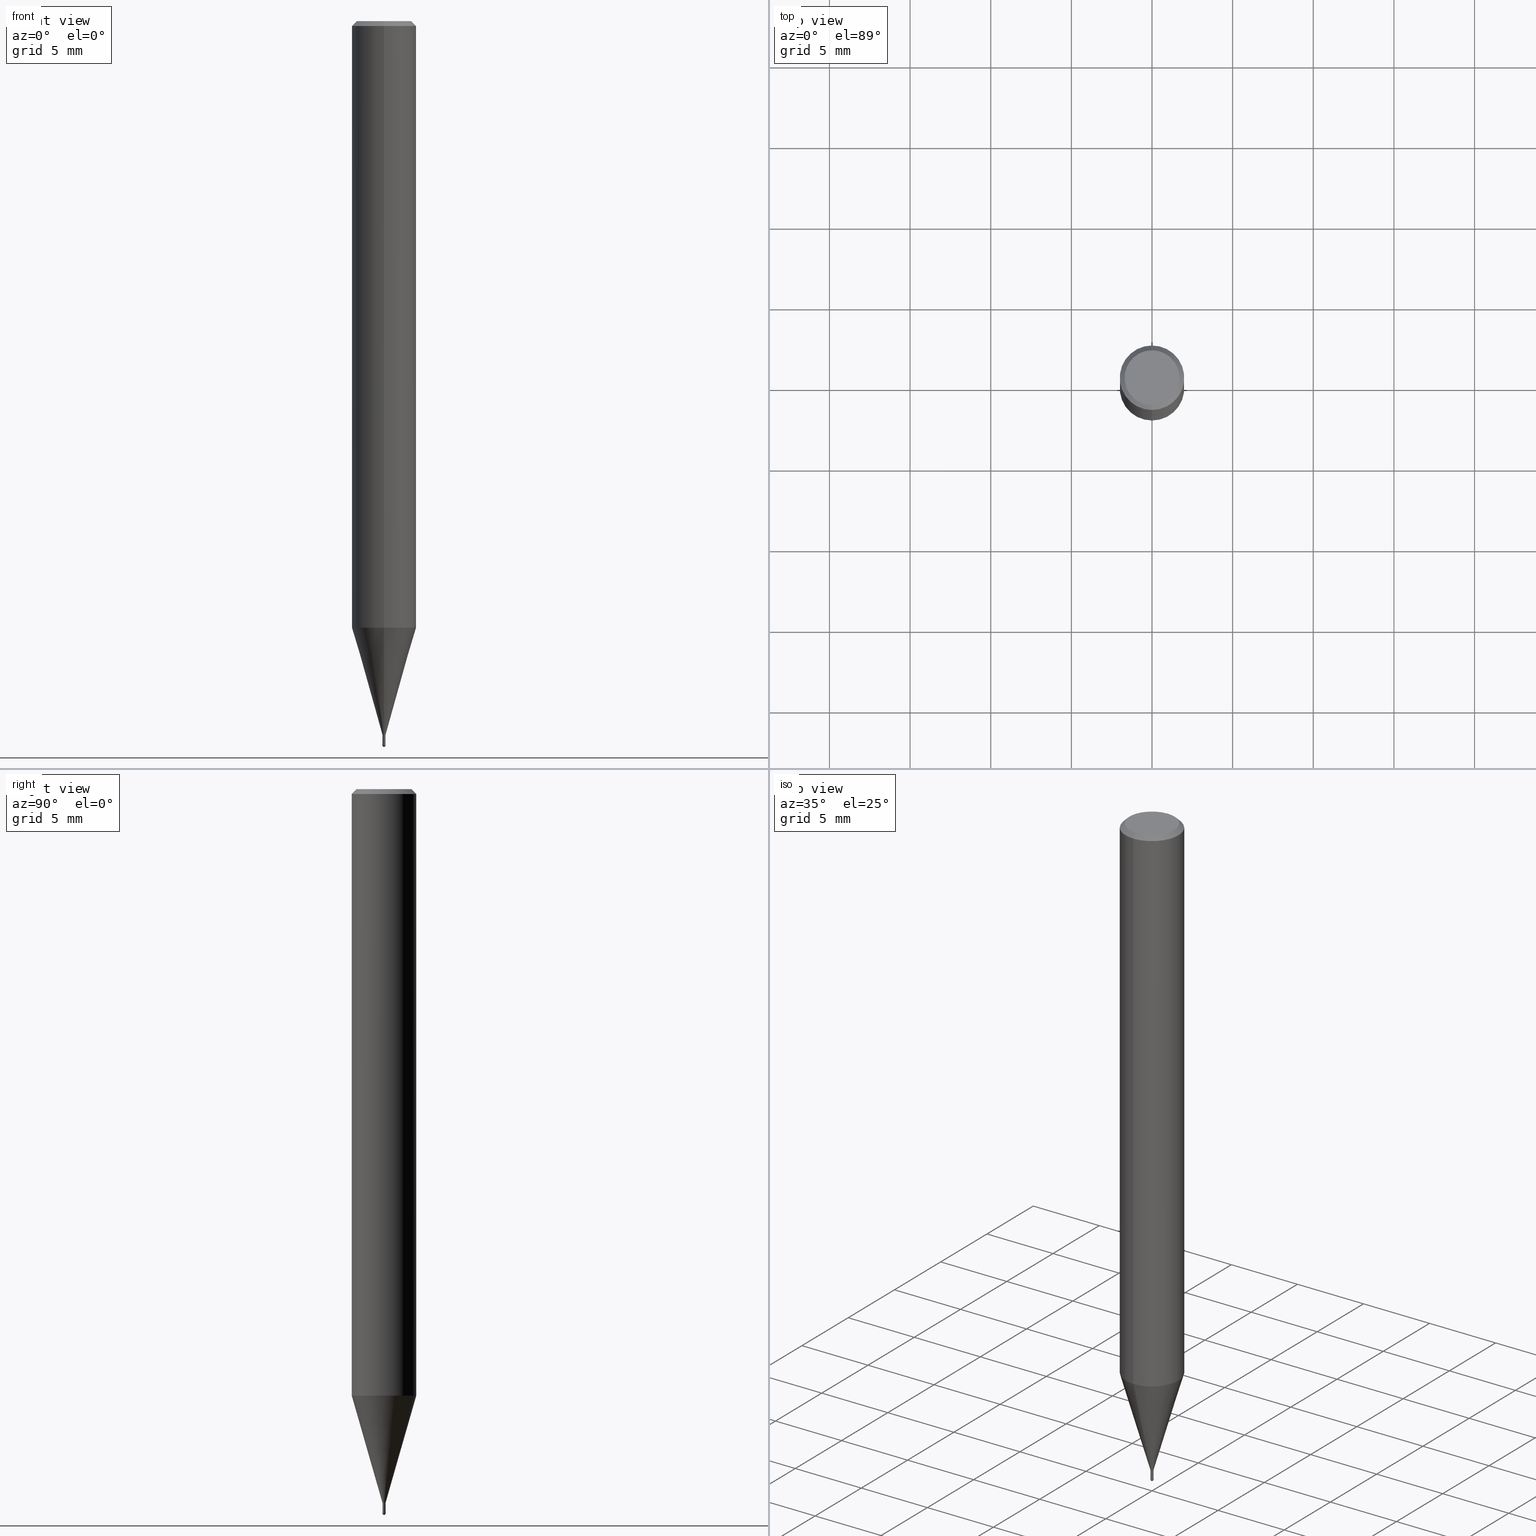
[diagram: canonical four-view strip — front | top / right | iso, engineering-drawing reading convention]
A machine part, canonical four-view strip (front | top / right | iso — engineering-drawing reading convention). The complete STEP part file that produces these views, byte-faithful:
ISO-10303-21;
HEADER;
FILE_DESCRIPTION(('no description'),'unknown implementation level');
FILE_NAME('HSLB2002-0075-Huellk.stp','  ',('CIMSOURCE GmbH'),('CADClick - KiM GmbH - www.kimweb.de'),'unknown preprocess','ACIS','unknown authorization');
FILE_SCHEMA(('automotive_design'));
ENDSEC;
DATA;
#1=MECHANICAL_DESIGN_GEOMETRIC_PRESENTATION_REPRESENTATION(' ',(#14,#15,#16,#17,#18,#19,#20,#21,#22,#23,#24,#25,#26,#27,#28,#29,#30,#31,#32,#33,#34,#35,#36,#37,#38,#39,#40,#41,#42,#43,#44,#45,#46,#47,#48,#49,#50,#51,#52,#53,#54,#55,#56,#57,#58,#59,#60,#61,#62,#63,#64,#65,#66,#67,#68,#69,#70,#71,#72,#73,#74),#10);
#2=PRODUCT_DEFINITION_CONTEXT('',#75,'design');
#3=APPLICATION_PROTOCOL_DEFINITION('INTERNATIONAL STANDARD','automotive_design',1994,#75);
#4=PRODUCT_CATEGORY_RELATIONSHIP('NONE','NONE',#76,#77);
#5=SHAPE_DEFINITION_REPRESENTATION(#78,#79);
#6=PRODUCT_DEFINITION_CONTEXT('',#80,'design');
#7=APPLICATION_PROTOCOL_DEFINITION('INTERNATIONAL STANDARD','automotive_design',1994,#80);
#8=PRODUCT_CATEGORY_RELATIONSHIP('NONE','NONE',#81,#82);
#9=SHAPE_DEFINITION_REPRESENTATION(#83,#84);
#10= (GEOMETRIC_REPRESENTATION_CONTEXT(3)GLOBAL_UNCERTAINTY_ASSIGNED_CONTEXT((#87))GLOBAL_UNIT_ASSIGNED_CONTEXT((#89,#90,#91))REPRESENTATION_CONTEXT('NONE','WORKSPACE'));
#14=STYLED_ITEM('',(#93),#94);
#15=STYLED_ITEM('',(#95),#96);
#16=STYLED_ITEM('',(#97),#98);
#17=STYLED_ITEM('',(#99),#100);
#18=STYLED_ITEM('',(#101),#102);
#19=STYLED_ITEM('',(#103),#104);
#20=STYLED_ITEM('',(#105),#106);
#21=STYLED_ITEM('',(#107),#108);
#22=STYLED_ITEM('',(#109),#110);
#23=STYLED_ITEM('',(#111),#112);
#24=STYLED_ITEM('',(#113),#114);
#25=STYLED_ITEM('',(#115),#116);
#26=STYLED_ITEM('',(#117),#118);
#27=STYLED_ITEM('',(#119),#120);
#28=STYLED_ITEM('',(#121),#122);
#29=STYLED_ITEM('',(#123),#124);
#30=STYLED_ITEM('',(#125),#126);
#31=STYLED_ITEM('',(#127),#128);
#32=STYLED_ITEM('',(#129),#130);
#33=STYLED_ITEM('',(#131),#132);
#34=STYLED_ITEM('',(#133),#134);
#35=STYLED_ITEM('',(#135),#136);
#36=STYLED_ITEM('',(#137),#138);
#37=STYLED_ITEM('',(#139),#140);
#38=STYLED_ITEM('',(#141),#142);
#39=STYLED_ITEM('',(#143),#144);
#40=STYLED_ITEM('',(#145),#146);
#41=STYLED_ITEM('',(#147),#148);
#42=STYLED_ITEM('',(#149),#150);
#43=STYLED_ITEM('',(#151),#152);
#44=STYLED_ITEM('',(#153),#154);
#45=STYLED_ITEM('',(#155),#156);
#46=STYLED_ITEM('',(#157),#158);
#47=STYLED_ITEM('',(#159),#160);
#48=STYLED_ITEM('',(#161),#162);
#49=STYLED_ITEM('',(#163),#164);
#50=STYLED_ITEM('',(#165),#166);
#51=STYLED_ITEM('',(#167),#168);
#52=STYLED_ITEM('',(#169),#170);
#53=STYLED_ITEM('',(#171),#172);
#54=STYLED_ITEM('',(#173),#174);
#55=STYLED_ITEM('',(#175),#176);
#56=STYLED_ITEM('',(#177),#178);
#57=STYLED_ITEM('',(#179),#180);
#58=STYLED_ITEM('',(#181),#182);
#59=STYLED_ITEM('',(#183),#184);
#60=STYLED_ITEM('',(#185),#186);
#61=STYLED_ITEM('',(#187),#188);
#62=STYLED_ITEM('',(#189),#190);
#63=STYLED_ITEM('',(#191),#192);
#64=STYLED_ITEM('',(#193),#194);
#65=STYLED_ITEM('',(#195),#196);
#66=STYLED_ITEM('',(#197),#198);
#67=STYLED_ITEM('',(#199),#200);
#68=STYLED_ITEM('',(#201),#202);
#69=STYLED_ITEM('',(#203),#204);
#70=STYLED_ITEM('',(#205),#206);
#71=STYLED_ITEM('',(#207),#208);
#72=STYLED_ITEM('',(#209),#210);
#73=STYLED_ITEM('',(#211),#212);
#74=STYLED_ITEM('',(#213),#214);
#75=APPLICATION_CONTEXT(' ');
#76=PRODUCT_CATEGORY('part','NONE');
#77=PRODUCT_RELATED_PRODUCT_CATEGORY('detail',' ',(#215));
#78=PRODUCT_DEFINITION_SHAPE('NONE','NONE',#216);
#79=ADVANCED_BREP_SHAPE_REPRESENTATION('1',(#138,#217),#10);
#80=APPLICATION_CONTEXT(' ');
#81=PRODUCT_CATEGORY('part','NONE');
#82=PRODUCT_RELATED_PRODUCT_CATEGORY('detail',' ',(#218));
#83=PRODUCT_DEFINITION_SHAPE('NONE','NONE',#219);
#84=ADVANCED_BREP_SHAPE_REPRESENTATION('2',(#178,#220),#10);
#87=UNCERTAINTY_MEASURE_WITH_UNIT(LENGTH_MEASURE(1.0E-006),#89,'','');
#89= (CONVERSION_BASED_UNIT('MILLIMETRE',#223)LENGTH_UNIT()NAMED_UNIT(#226));
#90= (NAMED_UNIT(#228)PLANE_ANGLE_UNIT()SI_UNIT($,.RADIAN.));
#91= (NAMED_UNIT(#228)SOLID_ANGLE_UNIT()SI_UNIT($,.STERADIAN.));
#93=PRESENTATION_STYLE_ASSIGNMENT((#234));
#94=EDGE_CURVE('',#210,#136,#235,.T.);
#95=PRESENTATION_STYLE_ASSIGNMENT((#236));
#96=EDGE_CURVE('',#208,#200,#237,.T.);
#97=PRESENTATION_STYLE_ASSIGNMENT((#238));
#98=VERTEX_POINT('',#239);
#99=PRESENTATION_STYLE_ASSIGNMENT((#240));
#100=ADVANCED_FACE('',(#241),#242,.T.);
#101=PRESENTATION_STYLE_ASSIGNMENT((#243));
#102=EDGE_CURVE('',#212,#130,#244,.T.);
#103=PRESENTATION_STYLE_ASSIGNMENT((#245));
#104=ADVANCED_FACE('',(#246),#247,.T.);
#105=PRESENTATION_STYLE_ASSIGNMENT((#248));
#106=ADVANCED_FACE('',(#249),#250,.T.);
#107=PRESENTATION_STYLE_ASSIGNMENT((#251));
#108=EDGE_CURVE('',#136,#210,#252,.T.);
#109=PRESENTATION_STYLE_ASSIGNMENT((#253));
#110=EDGE_CURVE('',#206,#174,#254,.T.);
#111=PRESENTATION_STYLE_ASSIGNMENT((#255));
#112=ADVANCED_FACE('',(#256),#257,.T.);
#113=PRESENTATION_STYLE_ASSIGNMENT((#258));
#114=ADVANCED_FACE('',(#259),#260,.T.);
#115=PRESENTATION_STYLE_ASSIGNMENT((#261));
#116=VERTEX_POINT('',#262);
#117=PRESENTATION_STYLE_ASSIGNMENT((#263));
#118=EDGE_CURVE('',#154,#130,#264,.T.);
#119=PRESENTATION_STYLE_ASSIGNMENT((#265));
#120=ADVANCED_FACE('',(#266),#267,.T.);
#121=PRESENTATION_STYLE_ASSIGNMENT((#268));
#122=ADVANCED_FACE('',(#269),#270,.T.);
#123=PRESENTATION_STYLE_ASSIGNMENT((#271));
#124=EDGE_CURVE('',#130,#212,#272,.T.);
#125=PRESENTATION_STYLE_ASSIGNMENT((#273));
#126=EDGE_CURVE('',#200,#174,#274,.T.);
#127=PRESENTATION_STYLE_ASSIGNMENT((#275));
#128=EDGE_CURVE('',#202,#210,#276,.T.);
#129=PRESENTATION_STYLE_ASSIGNMENT((#277));
#130=VERTEX_POINT('',#278);
#131=PRESENTATION_STYLE_ASSIGNMENT((#279));
#132=EDGE_CURVE('',#208,#98,#280,.T.);
#133=PRESENTATION_STYLE_ASSIGNMENT((#281));
#134=ADVANCED_FACE('',(#282,#283),#284,.T.);
#135=PRESENTATION_STYLE_ASSIGNMENT((#285));
#136=VERTEX_POINT('',#286);
#137=PRESENTATION_STYLE_ASSIGNMENT((#287));
#138=MANIFOLD_SOLID_BREP('1',#288);
#139=PRESENTATION_STYLE_ASSIGNMENT((#289));
#140=EDGE_CURVE('',#154,#148,#290,.T.);
#141=PRESENTATION_STYLE_ASSIGNMENT((#291));
#142=VERTEX_POINT('',#292);
#143=PRESENTATION_STYLE_ASSIGNMENT((#293));
#144=EDGE_CURVE('',#150,#98,#294,.T.);
#145=PRESENTATION_STYLE_ASSIGNMENT((#295));
#146=VERTEX_POINT('',#296);
#147=PRESENTATION_STYLE_ASSIGNMENT((#297));
#148=VERTEX_POINT('',#298);
#149=PRESENTATION_STYLE_ASSIGNMENT((#299));
#150=VERTEX_POINT('',#300);
#151=PRESENTATION_STYLE_ASSIGNMENT((#301));
#152=EDGE_CURVE('',#174,#206,#302,.T.);
#153=PRESENTATION_STYLE_ASSIGNMENT((#303));
#154=VERTEX_POINT('',#304);
#155=PRESENTATION_STYLE_ASSIGNMENT((#305));
#156=ADVANCED_FACE('',(#306),#307,.T.);
#157=PRESENTATION_STYLE_ASSIGNMENT((#308));
#158=EDGE_CURVE('',#148,#154,#309,.T.);
#159=PRESENTATION_STYLE_ASSIGNMENT((#310));
#160=EDGE_CURVE('',#142,#116,#311,.T.);
#161=PRESENTATION_STYLE_ASSIGNMENT((#312));
#162=EDGE_CURVE('',#150,#200,#313,.T.);
#163=PRESENTATION_STYLE_ASSIGNMENT((#314));
#164=EDGE_CURVE('',#202,#146,#315,.T.);
#165=PRESENTATION_STYLE_ASSIGNMENT((#316));
#166=EDGE_CURVE('',#200,#150,#317,.T.);
#167=PRESENTATION_STYLE_ASSIGNMENT((#318));
#168=ADVANCED_FACE('',(#319),#320,.T.);
#169=PRESENTATION_STYLE_ASSIGNMENT((#321));
#170=ADVANCED_FACE('',(#322),#323,.T.);
#171=PRESENTATION_STYLE_ASSIGNMENT((#324));
#172=EDGE_CURVE('',#212,#148,#325,.T.);
#173=PRESENTATION_STYLE_ASSIGNMENT((#326));
#174=VERTEX_POINT('',#327);
#175=PRESENTATION_STYLE_ASSIGNMENT((#328));
#176=EDGE_CURVE('',#116,#142,#329,.T.);
#177=PRESENTATION_STYLE_ASSIGNMENT((#330));
#178=MANIFOLD_SOLID_BREP('2',#331);
#179=PRESENTATION_STYLE_ASSIGNMENT((#332));
#180=ADVANCED_FACE('',(#333),#334,.T.);
#181=PRESENTATION_STYLE_ASSIGNMENT((#335));
#182=EDGE_CURVE('',#142,#212,#336,.T.);
#183=PRESENTATION_STYLE_ASSIGNMENT((#337));
#184=ADVANCED_FACE('',(#338),#339,.T.);
#185=PRESENTATION_STYLE_ASSIGNMENT((#340));
#186=ADVANCED_FACE('',(#341),#342,.T.);
#187=PRESENTATION_STYLE_ASSIGNMENT((#343));
#188=ADVANCED_FACE('',(#344),#345,.T.);
#189=PRESENTATION_STYLE_ASSIGNMENT((#346));
#190=EDGE_CURVE('',#206,#150,#347,.T.);
#191=PRESENTATION_STYLE_ASSIGNMENT((#348));
#192=ADVANCED_FACE('',(#349),#350,.T.);
#193=PRESENTATION_STYLE_ASSIGNMENT((#351));
#194=EDGE_CURVE('',#146,#202,#352,.T.);
#195=PRESENTATION_STYLE_ASSIGNMENT((#353));
#196=EDGE_CURVE('',#136,#146,#354,.T.);
#197=PRESENTATION_STYLE_ASSIGNMENT((#355));
#198=EDGE_CURVE('',#98,#208,#356,.T.);
#199=PRESENTATION_STYLE_ASSIGNMENT((#357));
#200=VERTEX_POINT('',#358);
#201=PRESENTATION_STYLE_ASSIGNMENT((#359));
#202=VERTEX_POINT('',#360);
#203=PRESENTATION_STYLE_ASSIGNMENT((#361));
#204=EDGE_CURVE('',#130,#116,#362,.T.);
#205=PRESENTATION_STYLE_ASSIGNMENT((#363));
#206=VERTEX_POINT('',#364);
#207=PRESENTATION_STYLE_ASSIGNMENT((#365));
#208=VERTEX_POINT('',#366);
#209=PRESENTATION_STYLE_ASSIGNMENT((#367));
#210=VERTEX_POINT('',#368);
#211=PRESENTATION_STYLE_ASSIGNMENT((#369));
#212=VERTEX_POINT('',#370);
#213=PRESENTATION_STYLE_ASSIGNMENT((#371));
#214=EDGE_CURVE('',#202,#146,#372,.T.);
#215=PRODUCT('1','1','PART-1-DESC',(#373));
#216=PRODUCT_DEFINITION('NONE','NONE',#374,#2);
#217=AXIS2_PLACEMENT_3D('',#375,#376,#377);
#218=PRODUCT('2','2','PART-2-DESC',(#378));
#219=PRODUCT_DEFINITION('NONE','NONE',#379,#6);
#220=AXIS2_PLACEMENT_3D('',#380,#381,#382);
#223=LENGTH_MEASURE_WITH_UNIT(LENGTH_MEASURE(1.0),#383);
#226=DIMENSIONAL_EXPONENTS(1.0,0.0,0.0,0.0,0.0,0.0,0.0);
#228=DIMENSIONAL_EXPONENTS(0.0,0.0,0.0,0.0,0.0,0.0,0.0);
#234=CURVE_STYLE('',#384,POSITIVE_LENGTH_MEASURE(1.0E-006),#385);
#235=CIRCLE('',#386,0.0999);
#236=CURVE_STYLE('',#387,POSITIVE_LENGTH_MEASURE(1.0E-006),#388);
#237=LINE('',#389,#390);
#238=POINT_STYLE(' ',#391,POSITIVE_LENGTH_MEASURE(1.0E-006),#392);
#239=CARTESIAN_POINT('',(0.0,2.0,-37.606));
#240=SURFACE_STYLE_USAGE(.BOTH.,#393);
#241=FACE_OUTER_BOUND('',#394,.T.);
#242=SPHERICAL_SURFACE('',#395,0.1);
#243=CURVE_STYLE('',#396,POSITIVE_LENGTH_MEASURE(1.0E-006),#397);
#244=CIRCLE('',#398,0.09495);
#245=SURFACE_STYLE_USAGE(.BOTH.,#399);
#246=FACE_OUTER_BOUND('',#400,.T.);
#247=CONICAL_SURFACE('',#401,1.04745,0.279233718115795);
#248=SURFACE_STYLE_USAGE(.BOTH.,#402);
#249=FACE_OUTER_BOUND('',#403,.T.);
#250=CYLINDRICAL_SURFACE('',#404,0.09495);
#251=CURVE_STYLE('',#405,POSITIVE_LENGTH_MEASURE(1.0E-006),#406);
#252=CIRCLE('',#407,0.0999);
#253=CURVE_STYLE('',#408,POSITIVE_LENGTH_MEASURE(1.0E-006),#409);
#254=CIRCLE('',#410,1.7);
#255=SURFACE_STYLE_USAGE(.BOTH.,#411);
#256=FACE_OUTER_BOUND('',#412,.T.);
#257=CONICAL_SURFACE('',#413,0.09995,0.00166666512345941);
#258=SURFACE_STYLE_USAGE(.BOTH.,#414);
#259=FACE_OUTER_BOUND('',#415,.T.);
#260=PLANE('',#416);
#261=POINT_STYLE(' ',#417,POSITIVE_LENGTH_MEASURE(1.0E-006),#418);
#262=CARTESIAN_POINT('',(2.44915147732706E-016,-1.99995,-37.606));
#263=CURVE_STYLE('',#419,POSITIVE_LENGTH_MEASURE(1.0E-006),#420);
#264=LINE('',#421,#422);
#265=SURFACE_STYLE_USAGE(.BOTH.,#423);
#266=FACE_OUTER_BOUND('',#424,.T.);
#267=CYLINDRICAL_SURFACE('',#425,0.09495);
#268=SURFACE_STYLE_USAGE(.BOTH.,#426);
#269=FACE_OUTER_BOUND('',#427,.T.);
#270=PLANE('',#428);
#271=CURVE_STYLE('',#429,POSITIVE_LENGTH_MEASURE(1.0E-006),#430);
#272=CIRCLE('',#431,0.09495);
#273=CURVE_STYLE('',#432,POSITIVE_LENGTH_MEASURE(1.0E-006),#433);
#274=LINE('',#434,#435);
#275=CURVE_STYLE('',#436,POSITIVE_LENGTH_MEASURE(1.0E-006),#437);
#276=LINE('',#438,#439);
#277=POINT_STYLE(' ',#440,POSITIVE_LENGTH_MEASURE(1.0E-006),#441);
#278=CARTESIAN_POINT('',(1.16276373295435E-017,-0.09495,-44.25));
#279=CURVE_STYLE('',#442,POSITIVE_LENGTH_MEASURE(1.0E-006),#443);
#280=CIRCLE('',#444,2.0);
#281=SURFACE_STYLE_USAGE(.BOTH.,#445);
#282=FACE_OUTER_BOUND('',#446,.T.);
#283=FACE_BOUND('',#447,.T.);
#284=PLANE('',#448);
#285=POINT_STYLE(' ',#449,POSITIVE_LENGTH_MEASURE(1.0E-006),#450);
#286=CARTESIAN_POINT('',(0.0,0.0999,-44.84));
#287=SURFACE_STYLE_USAGE(.BOTH.,#451);
#288=CLOSED_SHELL('',(#120,#180,#192,#170,#134,#168,#156,#188,#104,#106,#122));
#289=CURVE_STYLE('',#452,POSITIVE_LENGTH_MEASURE(1.0E-006),#453);
#290=CIRCLE('',#454,0.09495);
#291=POINT_STYLE(' ',#455,POSITIVE_LENGTH_MEASURE(1.0E-006),#456);
#292=CARTESIAN_POINT('',(0.0,1.99995,-37.606));
#293=CURVE_STYLE('',#457,POSITIVE_LENGTH_MEASURE(1.0E-006),#458);
#294=LINE('',#459,#460);
#295=POINT_STYLE(' ',#461,POSITIVE_LENGTH_MEASURE(1.0E-006),#462);
#296=CARTESIAN_POINT('',(0.0,0.1,-44.9));
#297=POINT_STYLE(' ',#463,POSITIVE_LENGTH_MEASURE(1.0E-006),#464);
#298=CARTESIAN_POINT('',(0.0,0.09495,-44.84));
#299=POINT_STYLE(' ',#465,POSITIVE_LENGTH_MEASURE(1.0E-006),#466);
#300=CARTESIAN_POINT('',(0.0,2.0,-0.299999999999997));
#301=CURVE_STYLE('',#467,POSITIVE_LENGTH_MEASURE(1.0E-006),#468);
#302=CIRCLE('',#469,1.7);
#303=POINT_STYLE(' ',#470,POSITIVE_LENGTH_MEASURE(1.0E-006),#471);
#304=CARTESIAN_POINT('',(1.16276373295435E-017,-0.09495,-44.84));
#305=SURFACE_STYLE_USAGE(.BOTH.,#472);
#306=FACE_OUTER_BOUND('',#473,.T.);
#307=CONICAL_SURFACE('',#474,1.85,0.785398163397453);
#308=CURVE_STYLE('',#475,POSITIVE_LENGTH_MEASURE(1.0E-006),#476);
#309=CIRCLE('',#477,0.09495);
#310=CURVE_STYLE('',#478,POSITIVE_LENGTH_MEASURE(1.0E-006),#479);
#311=CIRCLE('',#480,1.99995);
#312=CURVE_STYLE('',#481,POSITIVE_LENGTH_MEASURE(1.0E-006),#482);
#313=CIRCLE('',#483,2.0);
#314=CURVE_STYLE('',#484,POSITIVE_LENGTH_MEASURE(1.0E-006),#485);
#315=CIRCLE('',#486,0.1);
#316=CURVE_STYLE('',#487,POSITIVE_LENGTH_MEASURE(1.0E-006),#488);
#317=CIRCLE('',#489,2.0);
#318=SURFACE_STYLE_USAGE(.BOTH.,#490);
#319=FACE_OUTER_BOUND('',#491,.T.);
#320=PLANE('',#492);
#321=SURFACE_STYLE_USAGE(.BOTH.,#493);
#322=FACE_OUTER_BOUND('',#494,.T.);
#323=CONICAL_SURFACE('',#495,1.85,0.785398163397453);
#324=CURVE_STYLE('',#496,POSITIVE_LENGTH_MEASURE(1.0E-006),#497);
#325=LINE('',#498,#499);
#326=POINT_STYLE(' ',#500,POSITIVE_LENGTH_MEASURE(1.0E-006),#501);
#327=CARTESIAN_POINT('',(2.08183080149804E-016,-1.7,0.0));
#328=CURVE_STYLE('',#502,POSITIVE_LENGTH_MEASURE(1.0E-006),#503);
#329=CIRCLE('',#504,1.99995);
#330=SURFACE_STYLE_USAGE(.BOTH.,#505);
#331=CLOSED_SHELL('',(#100,#184,#114,#112,#186));
#332=SURFACE_STYLE_USAGE(.BOTH.,#506);
#333=FACE_OUTER_BOUND('',#507,.T.);
#334=CONICAL_SURFACE('',#508,1.04745,0.279233718115795);
#335=CURVE_STYLE('',#509,POSITIVE_LENGTH_MEASURE(1.0E-006),#510);
#336=LINE('',#511,#512);
#337=SURFACE_STYLE_USAGE(.BOTH.,#513);
#338=FACE_OUTER_BOUND('',#514,.T.);
#339=CONICAL_SURFACE('',#515,0.09995,0.00166666512345941);
#340=SURFACE_STYLE_USAGE(.BOTH.,#516);
#341=FACE_OUTER_BOUND('',#517,.T.);
#342=SPHERICAL_SURFACE('',#518,0.1);
#343=SURFACE_STYLE_USAGE(.BOTH.,#519);
#344=FACE_OUTER_BOUND('',#520,.T.);
#345=CYLINDRICAL_SURFACE('',#521,2.0);
#346=CURVE_STYLE('',#522,POSITIVE_LENGTH_MEASURE(1.0E-006),#523);
#347=LINE('',#524,#525);
#348=SURFACE_STYLE_USAGE(.BOTH.,#526);
#349=FACE_OUTER_BOUND('',#527,.T.);
#350=CYLINDRICAL_SURFACE('',#528,2.0);
#351=CURVE_STYLE('',#529,POSITIVE_LENGTH_MEASURE(1.0E-006),#530);
#352=CIRCLE('',#531,0.1);
#353=CURVE_STYLE('',#532,POSITIVE_LENGTH_MEASURE(1.0E-006),#533);
#354=LINE('',#534,#535);
#355=CURVE_STYLE('',#536,POSITIVE_LENGTH_MEASURE(1.0E-006),#537);
#356=CIRCLE('',#538,2.0);
#357=POINT_STYLE(' ',#539,POSITIVE_LENGTH_MEASURE(1.0E-006),#540);
#358=CARTESIAN_POINT('',(2.44921270764475E-016,-2.0,-0.299999999999997));
#359=POINT_STYLE(' ',#541,POSITIVE_LENGTH_MEASURE(1.0E-006),#542);
#360=CARTESIAN_POINT('',(1.22460635382238E-017,-0.1,-44.9));
#361=CURVE_STYLE('',#543,POSITIVE_LENGTH_MEASURE(1.0E-006),#544);
#362=LINE('',#545,#546);
#363=POINT_STYLE(' ',#547,POSITIVE_LENGTH_MEASURE(1.0E-006),#548);
#364=CARTESIAN_POINT('',(0.0,1.7,0.0));
#365=POINT_STYLE(' ',#549,POSITIVE_LENGTH_MEASURE(1.0E-006),#550);
#366=CARTESIAN_POINT('',(2.44921270764475E-016,-2.0,-37.606));
#367=POINT_STYLE(' ',#551,POSITIVE_LENGTH_MEASURE(1.0E-006),#552);
#368=CARTESIAN_POINT('',(1.22338174746855E-017,-0.0999,-44.84));
#369=POINT_STYLE(' ',#553,POSITIVE_LENGTH_MEASURE(1.0E-006),#554);
#370=CARTESIAN_POINT('',(0.0,0.09495,-44.25));
#371=CURVE_STYLE('',#555,POSITIVE_LENGTH_MEASURE(1.0E-006),#556);
#372=CIRCLE('',#557,0.1);
#373=PRODUCT_CONTEXT('',#75,'mechanical');
#374=PRODUCT_DEFINITION_FORMATION_WITH_SPECIFIED_SOURCE(' ','NONE',#215,.NOT_KNOWN.);
#375=CARTESIAN_POINT('',(0.0,0.0,0.0));
#376=DIRECTION('',(0.0,0.0,1.0));
#377=DIRECTION('',(1.0,0.0,0.0));
#378=PRODUCT_CONTEXT('',#80,'mechanical');
#379=PRODUCT_DEFINITION_FORMATION_WITH_SPECIFIED_SOURCE(' ','NONE',#218,.NOT_KNOWN.);
#380=CARTESIAN_POINT('',(0.0,0.0,0.0));
#381=DIRECTION('',(0.0,0.0,1.0));
#382=DIRECTION('',(1.0,0.0,0.0));
#383= (NAMED_UNIT(#226)LENGTH_UNIT()SI_UNIT(.MILLI.,.METRE.));
#384=DRAUGHTING_PRE_DEFINED_CURVE_FONT('continuous');
#385=COLOUR_RGB('',0.800000011920929,0.800000011920929,0.800000011920929);
#386=AXIS2_PLACEMENT_3D('',#559,#560,#561);
#387=DRAUGHTING_PRE_DEFINED_CURVE_FONT('continuous');
#388=COLOUR_RGB('',0.498039215803146,0.498039215803146,0.498039215803146);
#389=CARTESIAN_POINT('',(2.44921270764475E-016,-2.0,-18.953));
#390=VECTOR('',#562,1.0);
#391=PRE_DEFINED_MARKER('');
#392=COLOUR_RGB('',0.498039215803146,0.498039215803146,0.498039215803146);
#393=SURFACE_SIDE_STYLE('',(#563));
#394=EDGE_LOOP('',(#564,#565));
#395=AXIS2_PLACEMENT_3D('',#566,#567,#568);
#396=DRAUGHTING_PRE_DEFINED_CURVE_FONT('continuous');
#397=COLOUR_RGB('',0.498039215803146,0.498039215803146,0.498039215803146);
#398=AXIS2_PLACEMENT_3D('',#569,#570,#571);
#399=SURFACE_SIDE_STYLE('',(#572));
#400=EDGE_LOOP('',(#573,#574,#575,#576));
#401=AXIS2_PLACEMENT_3D('',#577,#578,#579);
#402=SURFACE_SIDE_STYLE('',(#580));
#403=EDGE_LOOP('',(#581,#582,#583,#584));
#404=AXIS2_PLACEMENT_3D('',#585,#586,#587);
#405=DRAUGHTING_PRE_DEFINED_CURVE_FONT('continuous');
#406=COLOUR_RGB('',0.800000011920929,0.800000011920929,0.800000011920929);
#407=AXIS2_PLACEMENT_3D('',#588,#589,#590);
#408=DRAUGHTING_PRE_DEFINED_CURVE_FONT('continuous');
#409=COLOUR_RGB('',0.498039215803146,0.498039215803146,0.498039215803146);
#410=AXIS2_PLACEMENT_3D('',#591,#592,#593);
#411=SURFACE_SIDE_STYLE('',(#594));
#412=EDGE_LOOP('',(#595,#596,#597,#598));
#413=AXIS2_PLACEMENT_3D('',#599,#600,#601);
#414=SURFACE_SIDE_STYLE('',(#602));
#415=EDGE_LOOP('',(#603,#604));
#416=AXIS2_PLACEMENT_3D('',#605,#606,#607);
#417=PRE_DEFINED_MARKER('');
#418=COLOUR_RGB('',0.498039215803146,0.498039215803146,0.498039215803146);
#419=DRAUGHTING_PRE_DEFINED_CURVE_FONT('continuous');
#420=COLOUR_RGB('',0.498039215803146,0.498039215803146,0.498039215803146);
#421=CARTESIAN_POINT('',(1.16276373295435E-017,-0.09495,-44.545));
#422=VECTOR('',#608,1.0);
#423=SURFACE_SIDE_STYLE('',(#609));
#424=EDGE_LOOP('',(#610,#611,#612,#613));
#425=AXIS2_PLACEMENT_3D('',#614,#615,#616);
#426=SURFACE_SIDE_STYLE('',(#617));
#427=EDGE_LOOP('',(#618,#619));
#428=AXIS2_PLACEMENT_3D('',#620,#621,#622);
#429=DRAUGHTING_PRE_DEFINED_CURVE_FONT('continuous');
#430=COLOUR_RGB('',0.498039215803146,0.498039215803146,0.498039215803146);
#431=AXIS2_PLACEMENT_3D('',#623,#624,#625);
#432=DRAUGHTING_PRE_DEFINED_CURVE_FONT('continuous');
#433=COLOUR_RGB('',0.498039215803146,0.498039215803146,0.498039215803146);
#434=CARTESIAN_POINT('',(2.2655217545714E-016,-1.85,-0.149999999999999));
#435=VECTOR('',#626,1.0);
#436=DRAUGHTING_PRE_DEFINED_CURVE_FONT('continuous');
#437=COLOUR_RGB('',0.800000011920929,0.800000011920929,0.800000011920929);
#438=CARTESIAN_POINT('',(1.22399405064547E-017,-0.09995,-44.87));
#439=VECTOR('',#627,1.0);
#440=PRE_DEFINED_MARKER('');
#441=COLOUR_RGB('',0.498039215803146,0.498039215803146,0.498039215803146);
#442=DRAUGHTING_PRE_DEFINED_CURVE_FONT('continuous');
#443=COLOUR_RGB('',0.498039215803146,0.498039215803146,0.498039215803146);
#444=AXIS2_PLACEMENT_3D('',#628,#629,#630);
#445=SURFACE_SIDE_STYLE('',(#631));
#446=EDGE_LOOP('',(#632,#633));
#447=EDGE_LOOP('',(#634,#635));
#448=AXIS2_PLACEMENT_3D('',#636,#637,#638);
#449=PRE_DEFINED_MARKER('');
#450=COLOUR_RGB('',0.800000011920929,0.800000011920929,0.800000011920929);
#451=SURFACE_SIDE_STYLE('',(#639));
#452=DRAUGHTING_PRE_DEFINED_CURVE_FONT('continuous');
#453=COLOUR_RGB('',0.498039215803146,0.498039215803146,0.498039215803146);
#454=AXIS2_PLACEMENT_3D('',#640,#641,#642);
#455=PRE_DEFINED_MARKER('');
#456=COLOUR_RGB('',0.498039215803146,0.498039215803146,0.498039215803146);
#457=DRAUGHTING_PRE_DEFINED_CURVE_FONT('continuous');
#458=COLOUR_RGB('',0.498039215803146,0.498039215803146,0.498039215803146);
#459=CARTESIAN_POINT('',(-2.44921270764475E-016,2.0,-18.953));
#460=VECTOR('',#643,1.0);
#461=PRE_DEFINED_MARKER('');
#462=COLOUR_RGB('',0.800000011920929,0.800000011920929,0.800000011920929);
#463=PRE_DEFINED_MARKER('');
#464=COLOUR_RGB('',0.498039215803146,0.498039215803146,0.498039215803146);
#465=PRE_DEFINED_MARKER('');
#466=COLOUR_RGB('',0.498039215803146,0.498039215803146,0.498039215803146);
#467=DRAUGHTING_PRE_DEFINED_CURVE_FONT('continuous');
#468=COLOUR_RGB('',0.498039215803146,0.498039215803146,0.498039215803146);
#469=AXIS2_PLACEMENT_3D('',#644,#645,#646);
#470=PRE_DEFINED_MARKER('');
#471=COLOUR_RGB('',0.498039215803146,0.498039215803146,0.498039215803146);
#472=SURFACE_SIDE_STYLE('',(#647));
#473=EDGE_LOOP('',(#648,#649,#650,#651));
#474=AXIS2_PLACEMENT_3D('',#652,#653,#654);
#475=DRAUGHTING_PRE_DEFINED_CURVE_FONT('continuous');
#476=COLOUR_RGB('',0.498039215803146,0.498039215803146,0.498039215803146);
#477=AXIS2_PLACEMENT_3D('',#655,#656,#657);
#478=DRAUGHTING_PRE_DEFINED_CURVE_FONT('continuous');
#479=COLOUR_RGB('',0.498039215803146,0.498039215803146,0.498039215803146);
#480=AXIS2_PLACEMENT_3D('',#658,#659,#660);
#481=DRAUGHTING_PRE_DEFINED_CURVE_FONT('continuous');
#482=COLOUR_RGB('',0.498039215803146,0.498039215803146,0.498039215803146);
#483=AXIS2_PLACEMENT_3D('',#661,#662,#663);
#484=DRAUGHTING_PRE_DEFINED_CURVE_FONT('continuous');
#485=COLOUR_RGB('',0.800000011920929,0.800000011920929,0.800000011920929);
#486=AXIS2_PLACEMENT_3D('',#664,#665,#666);
#487=DRAUGHTING_PRE_DEFINED_CURVE_FONT('continuous');
#488=COLOUR_RGB('',0.498039215803146,0.498039215803146,0.498039215803146);
#489=AXIS2_PLACEMENT_3D('',#667,#668,#669);
#490=SURFACE_SIDE_STYLE('',(#670));
#491=EDGE_LOOP('',(#671,#672));
#492=AXIS2_PLACEMENT_3D('',#673,#674,#675);
#493=SURFACE_SIDE_STYLE('',(#676));
#494=EDGE_LOOP('',(#677,#678,#679,#680));
#495=AXIS2_PLACEMENT_3D('',#681,#682,#683);
#496=DRAUGHTING_PRE_DEFINED_CURVE_FONT('continuous');
#497=COLOUR_RGB('',0.498039215803146,0.498039215803146,0.498039215803146);
#498=CARTESIAN_POINT('',(-1.16276373295435E-017,0.09495,-44.545));
#499=VECTOR('',#684,1.0);
#500=PRE_DEFINED_MARKER('');
#501=COLOUR_RGB('',0.498039215803146,0.498039215803146,0.498039215803146);
#502=DRAUGHTING_PRE_DEFINED_CURVE_FONT('continuous');
#503=COLOUR_RGB('',0.498039215803146,0.498039215803146,0.498039215803146);
#504=AXIS2_PLACEMENT_3D('',#685,#686,#687);
#505=SURFACE_SIDE_STYLE('',(#688));
#506=SURFACE_SIDE_STYLE('',(#689));
#507=EDGE_LOOP('',(#690,#691,#692,#693));
#508=AXIS2_PLACEMENT_3D('',#694,#695,#696);
#509=DRAUGHTING_PRE_DEFINED_CURVE_FONT('continuous');
#510=COLOUR_RGB('',0.498039215803146,0.498039215803146,0.498039215803146);
#511=CARTESIAN_POINT('',(-1.28271392531125E-016,1.04745,-40.928));
#512=VECTOR('',#697,1.0);
#513=SURFACE_SIDE_STYLE('',(#698));
#514=EDGE_LOOP('',(#699,#700,#701,#702));
#515=AXIS2_PLACEMENT_3D('',#703,#704,#705);
#516=SURFACE_SIDE_STYLE('',(#706));
#517=EDGE_LOOP('',(#707,#708));
#518=AXIS2_PLACEMENT_3D('',#709,#710,#711);
#519=SURFACE_SIDE_STYLE('',(#712));
#520=EDGE_LOOP('',(#713,#714,#715,#716));
#521=AXIS2_PLACEMENT_3D('',#717,#718,#719);
#522=DRAUGHTING_PRE_DEFINED_CURVE_FONT('continuous');
#523=COLOUR_RGB('',0.498039215803146,0.498039215803146,0.498039215803146);
#524=CARTESIAN_POINT('',(-2.2655217545714E-016,1.85,-0.149999999999999));
#525=VECTOR('',#720,1.0);
#526=SURFACE_SIDE_STYLE('',(#721));
#527=EDGE_LOOP('',(#722,#723,#724,#725));
#528=AXIS2_PLACEMENT_3D('',#726,#727,#728);
#529=DRAUGHTING_PRE_DEFINED_CURVE_FONT('continuous');
#530=COLOUR_RGB('',0.800000011920929,0.800000011920929,0.800000011920929);
#531=AXIS2_PLACEMENT_3D('',#729,#730,#731);
#532=DRAUGHTING_PRE_DEFINED_CURVE_FONT('continuous');
#533=COLOUR_RGB('',0.800000011920929,0.800000011920929,0.800000011920929);
#534=CARTESIAN_POINT('',(-1.22399405064547E-017,0.09995,-44.87));
#535=VECTOR('',#732,1.0);
#536=DRAUGHTING_PRE_DEFINED_CURVE_FONT('continuous');
#537=COLOUR_RGB('',0.498039215803146,0.498039215803146,0.498039215803146);
#538=AXIS2_PLACEMENT_3D('',#733,#734,#735);
#539=PRE_DEFINED_MARKER('');
#540=COLOUR_RGB('',0.498039215803146,0.498039215803146,0.498039215803146);
#541=PRE_DEFINED_MARKER('');
#542=COLOUR_RGB('',0.800000011920929,0.800000011920929,0.800000011920929);
#543=DRAUGHTING_PRE_DEFINED_CURVE_FONT('continuous');
#544=COLOUR_RGB('',0.498039215803146,0.498039215803146,0.498039215803146);
#545=CARTESIAN_POINT('',(1.28271392531125E-016,-1.04745,-40.928));
#546=VECTOR('',#736,1.0);
#547=PRE_DEFINED_MARKER('');
#548=COLOUR_RGB('',0.498039215803146,0.498039215803146,0.498039215803146);
#549=PRE_DEFINED_MARKER('');
#550=COLOUR_RGB('',0.498039215803146,0.498039215803146,0.498039215803146);
#551=PRE_DEFINED_MARKER('');
#552=COLOUR_RGB('',0.800000011920929,0.800000011920929,0.800000011920929);
#553=PRE_DEFINED_MARKER('');
#554=COLOUR_RGB('',0.498039215803146,0.498039215803146,0.498039215803146);
#555=DRAUGHTING_PRE_DEFINED_CURVE_FONT('continuous');
#556=COLOUR_RGB('',0.800000011920929,0.800000011920929,0.800000011920929);
#557=AXIS2_PLACEMENT_3D('',#737,#738,#739);
#559=CARTESIAN_POINT('',(0.0,0.0,-44.84));
#560=DIRECTION('',(0.0,0.0,-1.0));
#561=DIRECTION('',(0.0,1.0,0.0));
#562=DIRECTION('',(-0.0,-0.0,1.0));
#563=SURFACE_STYLE_FILL_AREA(#740);
#564=ORIENTED_EDGE('',*,*,#214,.F.);
#565=ORIENTED_EDGE('',*,*,#164,.T.);
#566=CARTESIAN_POINT('',(0.0,0.0,-44.9));
#567=DIRECTION('',(0.0,1.0,0.0));
#568=DIRECTION('',(0.0,0.0,-1.0));
#569=CARTESIAN_POINT('',(0.0,0.0,-44.25));
#570=DIRECTION('',(0.0,0.0,-1.0));
#571=DIRECTION('',(0.0,1.0,0.0));
#572=SURFACE_STYLE_FILL_AREA(#741);
#573=ORIENTED_EDGE('',*,*,#182,.T.);
#574=ORIENTED_EDGE('',*,*,#124,.F.);
#575=ORIENTED_EDGE('',*,*,#204,.T.);
#576=ORIENTED_EDGE('',*,*,#176,.T.);
#577=CARTESIAN_POINT('',(0.0,0.0,-40.928));
#578=DIRECTION('',(-0.0,-0.0,1.0));
#579=DIRECTION('',(0.0,1.0,0.0));
#580=SURFACE_STYLE_FILL_AREA(#742);
#581=ORIENTED_EDGE('',*,*,#172,.T.);
#582=ORIENTED_EDGE('',*,*,#140,.F.);
#583=ORIENTED_EDGE('',*,*,#118,.T.);
#584=ORIENTED_EDGE('',*,*,#124,.T.);
#585=CARTESIAN_POINT('',(0.0,0.0,-44.545));
#586=DIRECTION('',(-0.0,-0.0,1.0));
#587=DIRECTION('',(0.0,1.0,0.0));
#588=CARTESIAN_POINT('',(0.0,0.0,-44.84));
#589=DIRECTION('',(0.0,0.0,-1.0));
#590=DIRECTION('',(0.0,1.0,0.0));
#591=CARTESIAN_POINT('',(0.0,0.0,0.0));
#592=DIRECTION('',(0.0,0.0,-1.0));
#593=DIRECTION('',(0.0,1.0,0.0));
#594=SURFACE_STYLE_FILL_AREA(#743);
#595=ORIENTED_EDGE('',*,*,#196,.T.);
#596=ORIENTED_EDGE('',*,*,#164,.F.);
#597=ORIENTED_EDGE('',*,*,#128,.T.);
#598=ORIENTED_EDGE('',*,*,#94,.T.);
#599=CARTESIAN_POINT('',(0.0,0.0,-44.87));
#600=DIRECTION('',(0.0,-0.0,-1.0));
#601=DIRECTION('',(0.0,1.0,0.0));
#602=SURFACE_STYLE_FILL_AREA(#744);
#603=ORIENTED_EDGE('',*,*,#108,.F.);
#604=ORIENTED_EDGE('',*,*,#94,.F.);
#605=CARTESIAN_POINT('',(0.0,0.04995,-44.84));
#606=DIRECTION('',(-0.0,0.0,1.0));
#607=DIRECTION('',(0.0,-1.0,0.0));
#608=DIRECTION('',(-0.0,-0.0,1.0));
#609=SURFACE_STYLE_FILL_AREA(#745);
#610=ORIENTED_EDGE('',*,*,#172,.F.);
#611=ORIENTED_EDGE('',*,*,#102,.T.);
#612=ORIENTED_EDGE('',*,*,#118,.F.);
#613=ORIENTED_EDGE('',*,*,#158,.F.);
#614=CARTESIAN_POINT('',(0.0,0.0,-44.545));
#615=DIRECTION('',(-0.0,-0.0,1.0));
#616=DIRECTION('',(0.0,1.0,0.0));
#617=SURFACE_STYLE_FILL_AREA(#746);
#618=ORIENTED_EDGE('',*,*,#158,.T.);
#619=ORIENTED_EDGE('',*,*,#140,.T.);
#620=CARTESIAN_POINT('',(0.0,0.047475,-44.84));
#621=DIRECTION('',(0.0,0.0,-1.0));
#622=DIRECTION('',(0.0,1.0,0.0));
#623=CARTESIAN_POINT('',(0.0,0.0,-44.25));
#624=DIRECTION('',(0.0,0.0,-1.0));
#625=DIRECTION('',(0.0,1.0,0.0));
#626=DIRECTION('',(-8.6592745707194E-017,0.707106781186551,0.707106781186544));
#627=DIRECTION('',(-2.041007754973E-019,0.00166666435185672,0.999998611114005));
#628=CARTESIAN_POINT('',(0.0,0.0,-37.606));
#629=DIRECTION('',(0.0,0.0,-1.0));
#630=DIRECTION('',(0.0,1.0,0.0));
#631=SURFACE_STYLE_FILL_AREA(#747);
#632=ORIENTED_EDGE('',*,*,#198,.T.);
#633=ORIENTED_EDGE('',*,*,#132,.T.);
#634=ORIENTED_EDGE('',*,*,#160,.F.);
#635=ORIENTED_EDGE('',*,*,#176,.F.);
#636=CARTESIAN_POINT('',(0.0,1.0,-37.606));
#637=DIRECTION('',(0.0,0.0,-1.0));
#638=DIRECTION('',(0.0,1.0,0.0));
#639=SURFACE_STYLE_FILL_AREA(#748);
#640=CARTESIAN_POINT('',(0.0,0.0,-44.84));
#641=DIRECTION('',(0.0,0.0,-1.0));
#642=DIRECTION('',(0.0,1.0,0.0));
#643=DIRECTION('',(0.0,0.0,-1.0));
#644=CARTESIAN_POINT('',(0.0,0.0,0.0));
#645=DIRECTION('',(0.0,0.0,-1.0));
#646=DIRECTION('',(0.0,1.0,0.0));
#647=SURFACE_STYLE_FILL_AREA(#749);
#648=ORIENTED_EDGE('',*,*,#190,.T.);
#649=ORIENTED_EDGE('',*,*,#166,.F.);
#650=ORIENTED_EDGE('',*,*,#126,.T.);
#651=ORIENTED_EDGE('',*,*,#152,.T.);
#652=CARTESIAN_POINT('',(0.0,0.0,-0.149999999999999));
#653=DIRECTION('',(0.0,-0.0,-1.0));
#654=DIRECTION('',(0.0,1.0,0.0));
#655=CARTESIAN_POINT('',(0.0,0.0,-44.84));
#656=DIRECTION('',(0.0,0.0,-1.0));
#657=DIRECTION('',(0.0,1.0,0.0));
#658=CARTESIAN_POINT('',(0.0,0.0,-37.606));
#659=DIRECTION('',(0.0,0.0,-1.0));
#660=DIRECTION('',(0.0,1.0,0.0));
#661=CARTESIAN_POINT('',(0.0,0.0,-0.299999999999997));
#662=DIRECTION('',(0.0,0.0,-1.0));
#663=DIRECTION('',(0.0,1.0,0.0));
#664=CARTESIAN_POINT('',(0.0,0.0,-44.9));
#665=DIRECTION('',(0.0,0.0,-1.0));
#666=DIRECTION('',(0.0,1.0,0.0));
#667=CARTESIAN_POINT('',(0.0,0.0,-0.299999999999997));
#668=DIRECTION('',(0.0,0.0,-1.0));
#669=DIRECTION('',(0.0,1.0,0.0));
#670=SURFACE_STYLE_FILL_AREA(#750);
#671=ORIENTED_EDGE('',*,*,#110,.F.);
#672=ORIENTED_EDGE('',*,*,#152,.F.);
#673=CARTESIAN_POINT('',(0.0,0.85,0.0));
#674=DIRECTION('',(-0.0,0.0,1.0));
#675=DIRECTION('',(0.0,-1.0,0.0));
#676=SURFACE_STYLE_FILL_AREA(#751);
#677=ORIENTED_EDGE('',*,*,#190,.F.);
#678=ORIENTED_EDGE('',*,*,#110,.T.);
#679=ORIENTED_EDGE('',*,*,#126,.F.);
#680=ORIENTED_EDGE('',*,*,#162,.F.);
#681=CARTESIAN_POINT('',(0.0,0.0,-0.149999999999999));
#682=DIRECTION('',(0.0,-0.0,-1.0));
#683=DIRECTION('',(0.0,1.0,0.0));
#684=DIRECTION('',(0.0,0.0,-1.0));
#685=CARTESIAN_POINT('',(0.0,0.0,-37.606));
#686=DIRECTION('',(0.0,0.0,-1.0));
#687=DIRECTION('',(0.0,1.0,0.0));
#688=SURFACE_STYLE_FILL_AREA(#752);
#689=SURFACE_STYLE_FILL_AREA(#753);
#690=ORIENTED_EDGE('',*,*,#182,.F.);
#691=ORIENTED_EDGE('',*,*,#160,.T.);
#692=ORIENTED_EDGE('',*,*,#204,.F.);
#693=ORIENTED_EDGE('',*,*,#102,.F.);
#694=CARTESIAN_POINT('',(0.0,0.0,-40.928));
#695=DIRECTION('',(-0.0,-0.0,1.0));
#696=DIRECTION('',(0.0,1.0,0.0));
#697=DIRECTION('',(3.37524935540219E-017,-0.275619128127744,-0.961266922457078));
#698=SURFACE_STYLE_FILL_AREA(#754);
#699=ORIENTED_EDGE('',*,*,#196,.F.);
#700=ORIENTED_EDGE('',*,*,#108,.T.);
#701=ORIENTED_EDGE('',*,*,#128,.F.);
#702=ORIENTED_EDGE('',*,*,#194,.F.);
#703=CARTESIAN_POINT('',(0.0,0.0,-44.87));
#704=DIRECTION('',(0.0,-0.0,-1.0));
#705=DIRECTION('',(0.0,1.0,0.0));
#706=SURFACE_STYLE_FILL_AREA(#755);
#707=ORIENTED_EDGE('',*,*,#214,.T.);
#708=ORIENTED_EDGE('',*,*,#194,.T.);
#709=CARTESIAN_POINT('',(0.0,0.0,-44.9));
#710=DIRECTION('',(0.0,1.0,0.0));
#711=DIRECTION('',(0.0,0.0,-1.0));
#712=SURFACE_STYLE_FILL_AREA(#756);
#713=ORIENTED_EDGE('',*,*,#144,.T.);
#714=ORIENTED_EDGE('',*,*,#132,.F.);
#715=ORIENTED_EDGE('',*,*,#96,.T.);
#716=ORIENTED_EDGE('',*,*,#166,.T.);
#717=CARTESIAN_POINT('',(0.0,0.0,-18.953));
#718=DIRECTION('',(-0.0,-0.0,1.0));
#719=DIRECTION('',(0.0,1.0,0.0));
#720=DIRECTION('',(-8.6592745707194E-017,0.707106781186551,-0.707106781186544));
#721=SURFACE_STYLE_FILL_AREA(#757);
#722=ORIENTED_EDGE('',*,*,#144,.F.);
#723=ORIENTED_EDGE('',*,*,#162,.T.);
#724=ORIENTED_EDGE('',*,*,#96,.F.);
#725=ORIENTED_EDGE('',*,*,#198,.F.);
#726=CARTESIAN_POINT('',(0.0,0.0,-18.953));
#727=DIRECTION('',(-0.0,-0.0,1.0));
#728=DIRECTION('',(0.0,1.0,0.0));
#729=CARTESIAN_POINT('',(0.0,0.0,-44.9));
#730=DIRECTION('',(0.0,0.0,-1.0));
#731=DIRECTION('',(0.0,1.0,0.0));
#732=DIRECTION('',(-2.041007754973E-019,0.00166666435185672,-0.999998611114005));
#733=CARTESIAN_POINT('',(0.0,0.0,-37.606));
#734=DIRECTION('',(0.0,0.0,-1.0));
#735=DIRECTION('',(0.0,1.0,0.0));
#736=DIRECTION('',(3.37524935540219E-017,-0.275619128127744,0.961266922457078));
#737=CARTESIAN_POINT('',(0.0,0.0,-44.9));
#738=DIRECTION('',(1.0,0.0,1.22460635382236E-016));
#739=DIRECTION('',(-1.22460635382236E-016,0.0,1.0));
#740=FILL_AREA_STYLE('',(#758));
#741=FILL_AREA_STYLE('',(#759));
#742=FILL_AREA_STYLE('',(#760));
#743=FILL_AREA_STYLE('',(#761));
#744=FILL_AREA_STYLE('',(#762));
#745=FILL_AREA_STYLE('',(#763));
#746=FILL_AREA_STYLE('',(#764));
#747=FILL_AREA_STYLE('',(#765));
#748=FILL_AREA_STYLE('',(#766));
#749=FILL_AREA_STYLE('',(#767));
#750=FILL_AREA_STYLE('',(#768));
#751=FILL_AREA_STYLE('',(#769));
#752=FILL_AREA_STYLE('',(#770));
#753=FILL_AREA_STYLE('',(#771));
#754=FILL_AREA_STYLE('',(#772));
#755=FILL_AREA_STYLE('',(#773));
#756=FILL_AREA_STYLE('',(#774));
#757=FILL_AREA_STYLE('',(#775));
#758=FILL_AREA_STYLE_COLOUR('',#776);
#759=FILL_AREA_STYLE_COLOUR('',#777);
#760=FILL_AREA_STYLE_COLOUR('',#778);
#761=FILL_AREA_STYLE_COLOUR('',#779);
#762=FILL_AREA_STYLE_COLOUR('',#780);
#763=FILL_AREA_STYLE_COLOUR('',#781);
#764=FILL_AREA_STYLE_COLOUR('',#782);
#765=FILL_AREA_STYLE_COLOUR('',#783);
#766=FILL_AREA_STYLE_COLOUR('',#784);
#767=FILL_AREA_STYLE_COLOUR('',#785);
#768=FILL_AREA_STYLE_COLOUR('',#786);
#769=FILL_AREA_STYLE_COLOUR('',#787);
#770=FILL_AREA_STYLE_COLOUR('',#788);
#771=FILL_AREA_STYLE_COLOUR('',#789);
#772=FILL_AREA_STYLE_COLOUR('',#790);
#773=FILL_AREA_STYLE_COLOUR('',#791);
#774=FILL_AREA_STYLE_COLOUR('',#792);
#775=FILL_AREA_STYLE_COLOUR('',#793);
#776=COLOUR_RGB('',0.800000011920929,0.800000011920929,0.800000011920929);
#777=COLOUR_RGB('',0.498039215803146,0.498039215803146,0.498039215803146);
#778=COLOUR_RGB('',0.498039215803146,0.498039215803146,0.498039215803146);
#779=COLOUR_RGB('',0.800000011920929,0.800000011920929,0.800000011920929);
#780=COLOUR_RGB('',0.800000011920929,0.800000011920929,0.800000011920929);
#781=COLOUR_RGB('',0.498039215803146,0.498039215803146,0.498039215803146);
#782=COLOUR_RGB('',0.498039215803146,0.498039215803146,0.498039215803146);
#783=COLOUR_RGB('',0.498039215803146,0.498039215803146,0.498039215803146);
#784=COLOUR_RGB('',0.498039215803146,0.498039215803146,0.498039215803146);
#785=COLOUR_RGB('',0.498039215803146,0.498039215803146,0.498039215803146);
#786=COLOUR_RGB('',0.498039215803146,0.498039215803146,0.498039215803146);
#787=COLOUR_RGB('',0.498039215803146,0.498039215803146,0.498039215803146);
#788=COLOUR_RGB('',0.800000011920929,0.800000011920929,0.800000011920929);
#789=COLOUR_RGB('',0.498039215803146,0.498039215803146,0.498039215803146);
#790=COLOUR_RGB('',0.800000011920929,0.800000011920929,0.800000011920929);
#791=COLOUR_RGB('',0.800000011920929,0.800000011920929,0.800000011920929);
#792=COLOUR_RGB('',0.498039215803146,0.498039215803146,0.498039215803146);
#793=COLOUR_RGB('',0.498039215803146,0.498039215803146,0.498039215803146);
#794=AXIS2_PLACEMENT_3D('PCS',#795,#796,#797);
#795=CARTESIAN_POINT('',(0.0,0.0,0.0));
#796=DIRECTION('',(0.0,0.0,1.0));
#797=DIRECTION('',(1.0,0.0,0.0));
#798=AXIS2_PLACEMENT_3D('CIP',#799,#800,#801);
#799=CARTESIAN_POINT('',(0.0,0.0,-45.0));
#800=DIRECTION('',(0.0,0.0,1.0));
#801=DIRECTION('',(1.0,0.0,0.0));
#802=AXIS2_PLACEMENT_3D('CRP',#803,#804,#805);
#803=CARTESIAN_POINT('',(-0.1,0.0,-45.0));
#804=DIRECTION('',(0.0,0.0,1.0));
#805=DIRECTION('',(1.0,0.0,0.0));
#806=AXIS2_PLACEMENT_3D('MCS',#807,#808,#809);
#807=CARTESIAN_POINT('',(0.0,0.0,-37.606));
#808=DIRECTION('',(0.0,0.0,1.0));
#809=DIRECTION('',(1.0,0.0,0.0));
#810=CONSTRUCTIVE_GEOMETRY_REPRESENTATION_RELATIONSHIP('coordinate systems',$,#79,#811);
#811=CONSTRUCTIVE_GEOMETRY_REPRESENTATION('coordinate systems',(#794,#798,#802,#806),#10);
ENDSEC;
END-ISO-10303-21;
